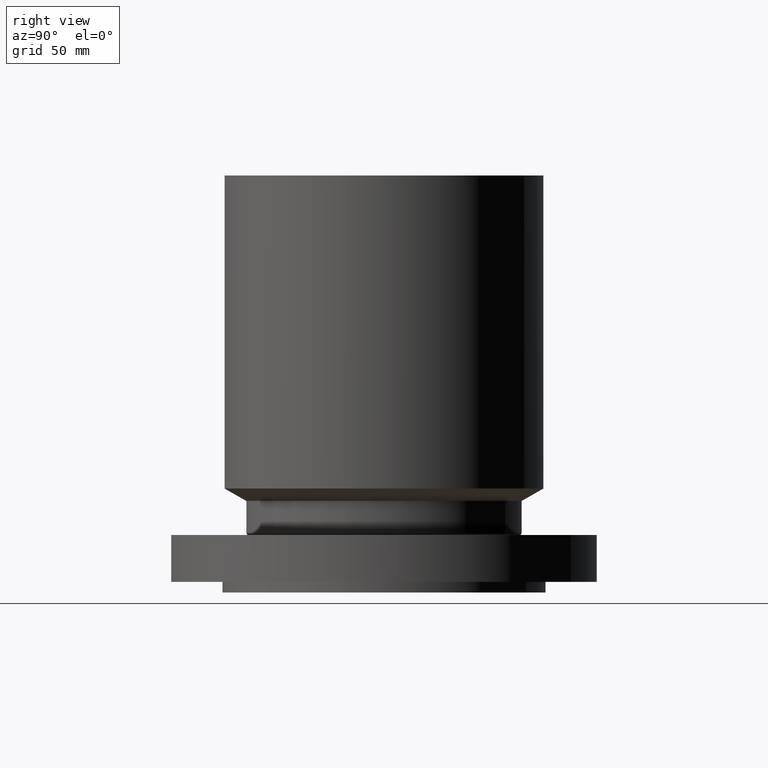
[diagram: clean part render]
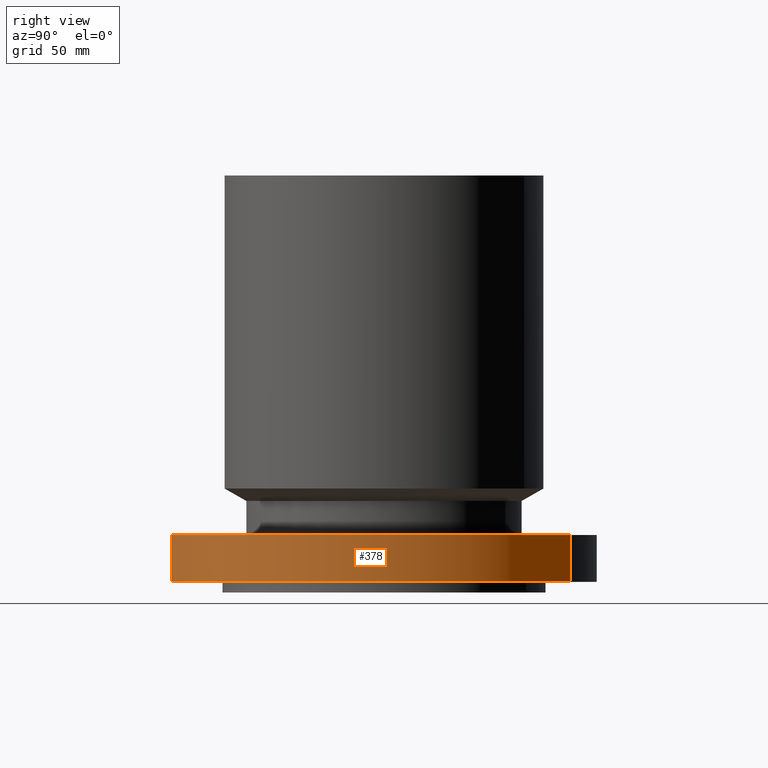
[diagram: same view with one face highlighted and labeled with its STEP entity id]
A machine part, right view. The second image highlights one B-rep face of the part: STEP entity #378.
In plain terms, the highlighted cylindrical surface (partial cylindrical patch) has radius 158.75 mm, axis along (0, 0, -1).
Its self-contained STEP definition (entity closure, byte-faithful):
#91=AXIS2_PLACEMENT_3D('Circle Axis2P3D',#89,#90,$) ;
#339=AXIS2_PLACEMENT_3D('Cylinder Axis2P3D',#336,#337,#338) ;
#369=AXIS2_PLACEMENT_3D('Circle Axis2P3D',#367,#368,$) ;
#84=CARTESIAN_POINT('Vertex',(-2.99640961629,-5.48489101184,1.1189649382E-015)) ;
#86=CARTESIAN_POINT('Vertex',(2.99640961629,5.48489101184,1.1189649382E-015)) ;
#89=CARTESIAN_POINT('Axis2P3D Location',(0.,0.,0.)) ;
#336=CARTESIAN_POINT('Axis2P3D Location',(0.,0.,5.81225000002)) ;
#341=CARTESIAN_POINT('Line Origine',(-2.99640961629,-5.48489101184,0.688750000003)) ;
#345=CARTESIAN_POINT('Vertex',(-2.99640961629,-5.48489101184,1.37750000001)) ;
#352=CARTESIAN_POINT('Vertex',(2.99640961629,5.48489101184,1.37750000001)) ;
#355=CARTESIAN_POINT('Line Origine',(2.99640961629,5.48489101184,0.688750000003)) ;
#367=CARTESIAN_POINT('Axis2P3D Location',(0.,0.,1.37750000001)) ;
#90=DIRECTION('Axis2P3D Direction',(0.,0.,-0.0393700787402)) ;
#337=DIRECTION('Axis2P3D Direction',(0.,0.,-0.0393700787402)) ;
#338=DIRECTION('Axis2P3D XDirection',(0.0188750212049,0.0345504945626,0.)) ;
#342=DIRECTION('Vector Direction',(0.,0.,-0.0393700787402)) ;
#356=DIRECTION('Vector Direction',(0.,0.,-0.0393700787402)) ;
#368=DIRECTION('Axis2P3D Direction',(0.,0.,-0.0393700787402)) ;
#343=VECTOR('Line Direction',#342,0.0393700787402) ;
#357=VECTOR('Line Direction',#356,0.0393700787402) ;
#373=ORIENTED_EDGE('',*,*,#93,.F.) ;
#374=ORIENTED_EDGE('',*,*,#359,.T.) ;
#375=ORIENTED_EDGE('',*,*,#371,.T.) ;
#376=ORIENTED_EDGE('',*,*,#347,.F.) ;
#378=ADVANCED_FACE('PartBody',(#377),#340,.T.) ;
#92=CIRCLE('generated circle',#91,6.25000000003) ;
#370=CIRCLE('generated circle',#369,6.25000000003) ;
#340=CYLINDRICAL_SURFACE('generated cylinder',#339,6.25000000003) ;
#93=EDGE_CURVE('',#87,#85,#92,.T.) ;
#347=EDGE_CURVE('',#85,#346,#344,.F.) ;
#359=EDGE_CURVE('',#87,#353,#358,.F.) ;
#371=EDGE_CURVE('',#353,#346,#370,.T.) ;
#372=EDGE_LOOP('',(#373,#374,#375,#376)) ;
#377=FACE_OUTER_BOUND('',#372,.T.) ;
#344=LINE('Line',#341,#343) ;
#358=LINE('Line',#355,#357) ;
#85=VERTEX_POINT('',#84) ;
#87=VERTEX_POINT('',#86) ;
#346=VERTEX_POINT('',#345) ;
#353=VERTEX_POINT('',#352) ;